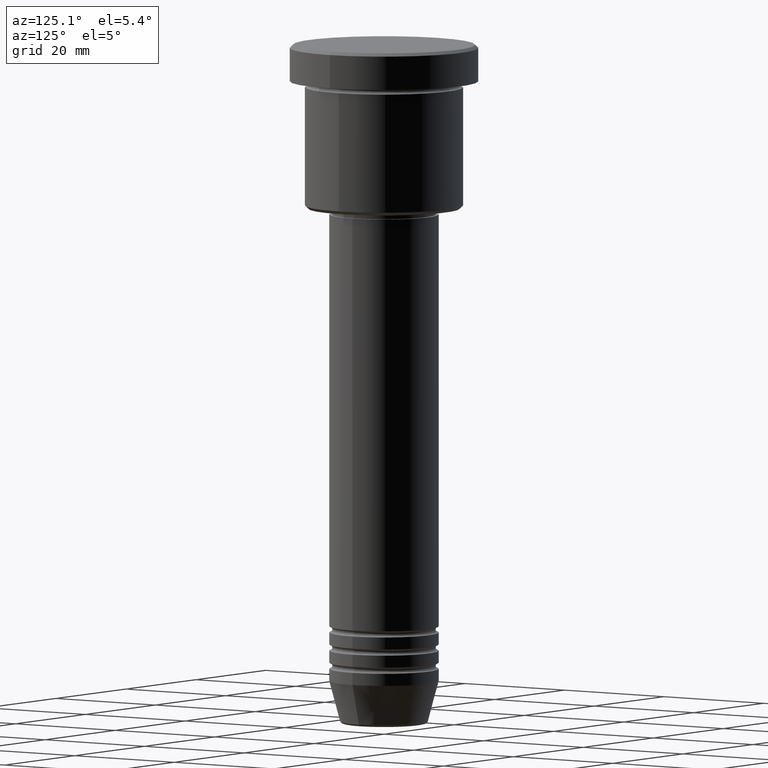
[diagram: clean part render]
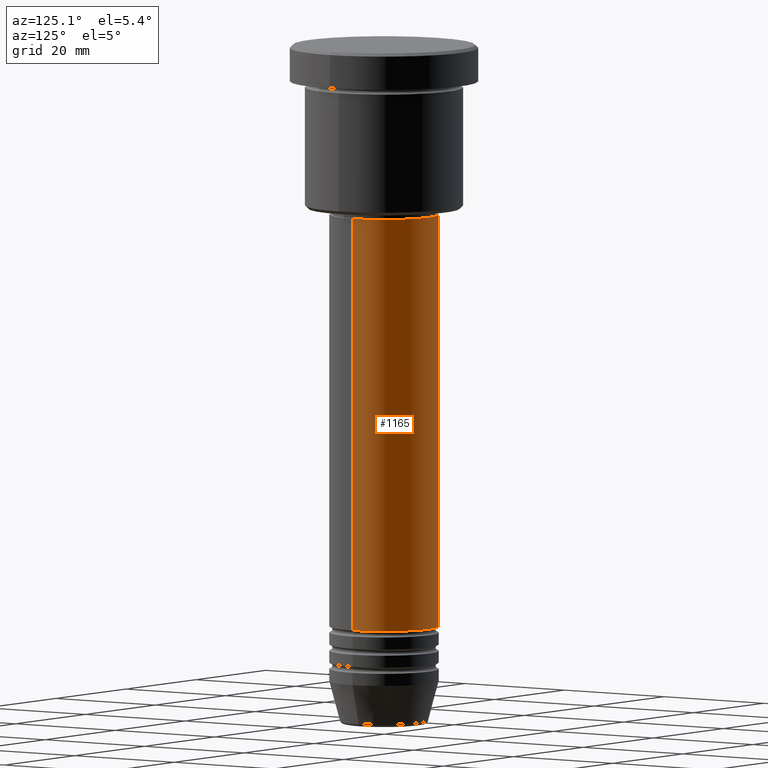
[diagram: same view with one face highlighted and labeled with its STEP entity id]
A machine part, auxiliary view. The second image highlights one B-rep face of the part: STEP entity #1165.
In plain terms, the highlighted cylindrical surface (partial cylindrical patch) has radius 9 mm, axis along (-0, -0, 1).
Its self-contained STEP definition (entity closure, byte-faithful):
#5 = CARTESIAN_POINT ( 'NONE',  ( 0.000000000000000000, 0.000000000000000000, 0.000000000000000000 ) ) ;
#69 = CIRCLE ( 'NONE', #748, 9.000000000000000000 ) ;
#112 = CARTESIAN_POINT ( 'NONE',  ( -9.000000000000000000, 1.102182119232617714E-15, 0.000000000000000000 ) ) ;
#134 = FACE_OUTER_BOUND ( 'NONE', #832, .T. ) ;
#178 = CARTESIAN_POINT ( 'NONE',  ( 0.000000000000000000, 0.000000000000000000, -28.00000000000000355 ) ) ;
#218 = CIRCLE ( 'NONE', #890, 9.000000000000000000 ) ;
#226 = ORIENTED_EDGE ( 'NONE', *, *, #719, .T. ) ;
#241 = VECTOR ( 'NONE', #386, 1000.000000000000000 ) ;
#277 = DIRECTION ( 'NONE',  ( -0.000000000000000000, -0.000000000000000000, 1.000000000000000000 ) ) ;
#288 = CARTESIAN_POINT ( 'NONE',  ( -9.000000000000000000, 1.102182119232617714E-15, -95.99999999999997158 ) ) ;
#319 = VERTEX_POINT ( 'NONE', #697 ) ;
#334 = EDGE_CURVE ( 'NONE', #801, #518, #1065, .T. ) ;
#338 = EDGE_CURVE ( 'NONE', #801, #637, #218, .T. ) ;
#386 = DIRECTION ( 'NONE',  ( -0.000000000000000000, -0.000000000000000000, 1.000000000000000000 ) ) ;
#403 = ORIENTED_EDGE ( 'NONE', *, *, #334, .F. ) ;
#430 = DIRECTION ( 'NONE',  ( 1.000000000000000000, 0.000000000000000000, 0.000000000000000000 ) ) ;
#518 = VERTEX_POINT ( 'NONE', #807 ) ;
#531 = EDGE_CURVE ( 'NONE', #518, #319, #69, .T. ) ;
#544 = CARTESIAN_POINT ( 'NONE',  ( 9.000000000000000000, 0.000000000000000000, -95.99999999999997158 ) ) ;
#547 = DIRECTION ( 'NONE',  ( 1.000000000000000000, 0.000000000000000000, 0.000000000000000000 ) ) ;
#585 = AXIS2_PLACEMENT_3D ( 'NONE', #5, #1005, #547 ) ;
#631 = DIRECTION ( 'NONE',  ( 1.000000000000000000, 0.000000000000000000, 0.000000000000000000 ) ) ;
#637 = VERTEX_POINT ( 'NONE', #288 ) ;
#697 = CARTESIAN_POINT ( 'NONE',  ( -9.000000000000000000, 1.102182119232617714E-15, -28.00000000000000355 ) ) ;
#715 = DIRECTION ( 'NONE',  ( -0.000000000000000000, -0.000000000000000000, 1.000000000000000000 ) ) ;
#719 = EDGE_CURVE ( 'NONE', #637, #319, #1114, .T. ) ;
#743 = VECTOR ( 'NONE', #715, 1000.000000000000000 ) ;
#748 = AXIS2_PLACEMENT_3D ( 'NONE', #178, #277, #631 ) ;
#801 = VERTEX_POINT ( 'NONE', #544 ) ;
#807 = CARTESIAN_POINT ( 'NONE',  ( 9.000000000000000000, 0.000000000000000000, -28.00000000000000355 ) ) ;
#832 = EDGE_LOOP ( 'NONE', ( #1033, #226, #1044, #403 ) ) ;
#883 = CARTESIAN_POINT ( 'NONE',  ( 0.000000000000000000, 0.000000000000000000, -95.99999999999997158 ) ) ;
#890 = AXIS2_PLACEMENT_3D ( 'NONE', #883, #1159, #430 ) ;
#898 = CYLINDRICAL_SURFACE ( 'NONE', #585, 9.000000000000000000 ) ;
#987 = CARTESIAN_POINT ( 'NONE',  ( 9.000000000000000000, 0.000000000000000000, 0.000000000000000000 ) ) ;
#1005 = DIRECTION ( 'NONE',  ( -0.000000000000000000, -0.000000000000000000, 1.000000000000000000 ) ) ;
#1033 = ORIENTED_EDGE ( 'NONE', *, *, #338, .T. ) ;
#1044 = ORIENTED_EDGE ( 'NONE', *, *, #531, .F. ) ;
#1065 = LINE ( 'NONE', #987, #743 ) ;
#1114 = LINE ( 'NONE', #112, #241 ) ;
#1159 = DIRECTION ( 'NONE',  ( -0.000000000000000000, -0.000000000000000000, 1.000000000000000000 ) ) ;
#1165 = ADVANCED_FACE ( 'NONE', ( #134 ), #898, .T. ) ;